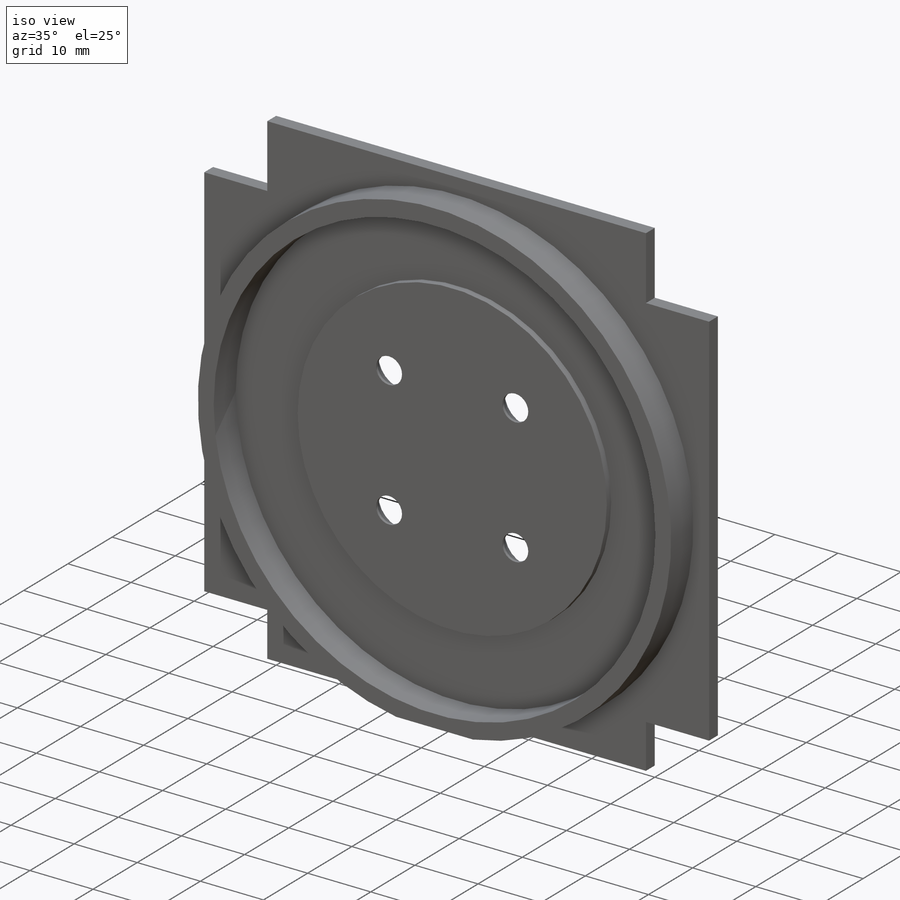
[diagram: iso view]
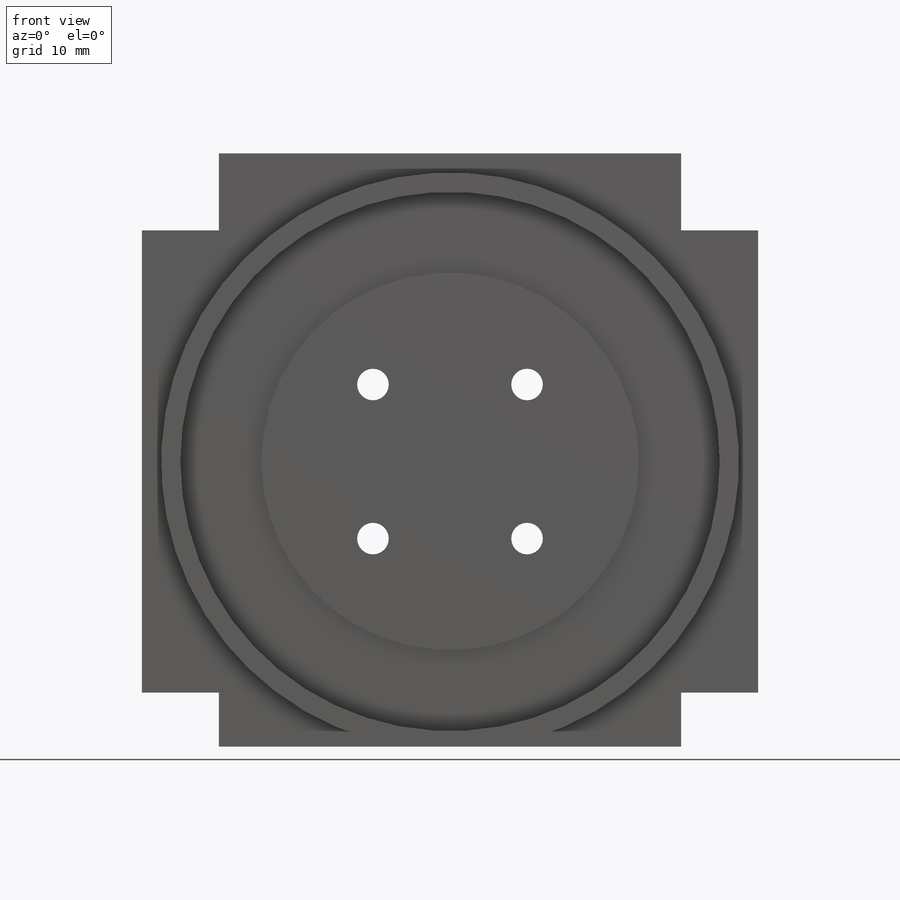
[diagram: front view]
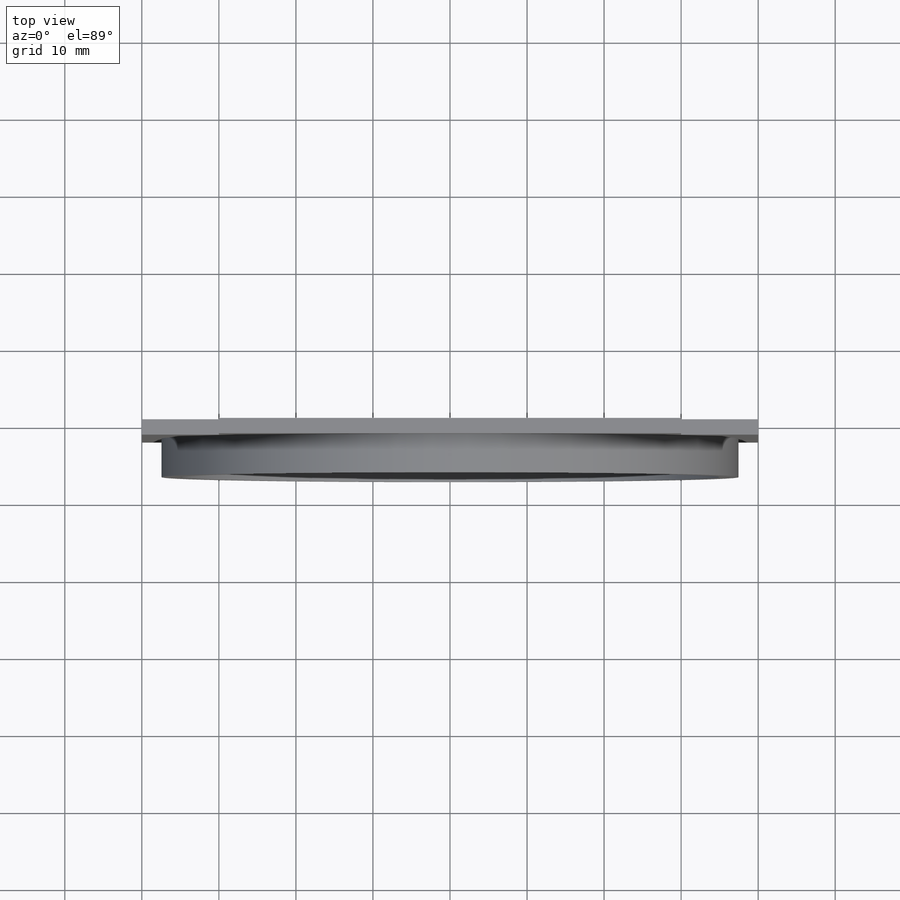
[diagram: top view]
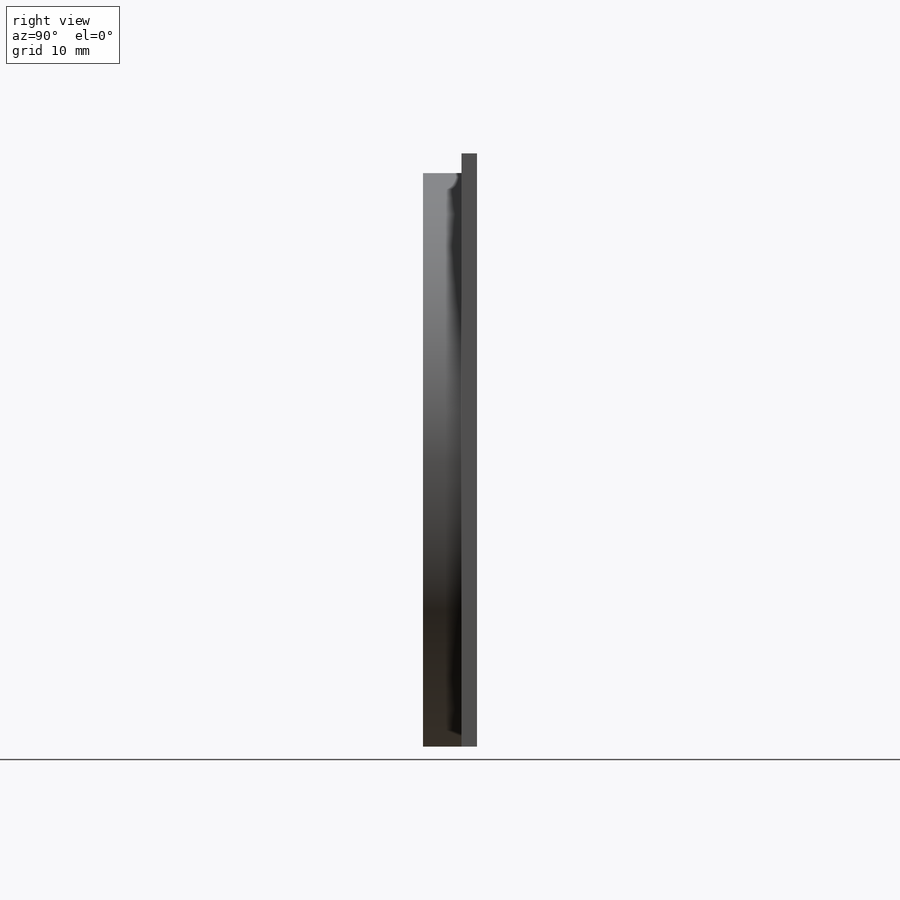
[diagram: right view]
SOLIDWORKS PART (.sldprt)
format: sldprt  version: not decoded by parser v0  size: 283,648 bytes
history: native  units: mm
features: sketch x6, plane x3, extrude x3, cut_extrude x3, material x1, chamfer x1 (+10 scaffold rows collapsed)
feature tree (27):
  scaffold x10  (default folders/planes/origin — collapsed)
  material  "Matériau <non spécifié>"
  plane  "Plan de face"
  plane  "Plan de dessus"
  plane  "Plan de droite"
  sketch  "Esquisse1"  dims[D1=80.0mm D2=80.0mm]
  extrude  "Boss.-Extru.1"  Depth=2mm
  sketch  "Esquisse2"  dims[D1=49.0mm D2=40.0mm D3=40.0mm]
  extrude  "Boss.-Extru.2"  Depth=1mm
  sketch  "Esquisse3"  dims[D1=4.1mm D2=4.1mm D3=4.1mm D4=4.1mm D5=30.0mm D6=30.0mm D7=30.0mm D8=30.0mm D9=30.0mm D10=30.0mm D11=30.0mm D12=30.0mm]
  cut_extrude  "Enlèv. mat.-Extru.1"  [1 undecoded]
  chamfer  "Chanfrein1"  Distance=1.75mm Angle=56deg
  sketch  "Esquisse4"  dims[D3=75.0mm D4=70.0mm D1=40.0mm D2=40.0mm]
  extrude  "Boss.-Extru.3"  Depth=5mm
  sketch  "Esquisse5"  dims[D1=3.0mm]
  cut_extrude  "Enlèv. mat.-Extru.2"  [1 undecoded]
  sketch  "Esquisse6"  dims[D1=10.0mm D2=10.0mm D3=10.0mm D4=10.0mm D5=10.0mm D6=7.0mm D7=7.0mm D8=10.0mm]
  cut_extrude  "Enlèv. mat.-Extru.3"  [1 undecoded]
decode coverage: 10 of 13 modeling features carry decoded parameters
note: 3 parameter values undecoded
summary: no parameter record found for 3 features
note: suppression state not decoded; provenance and decode notes live in map.json
